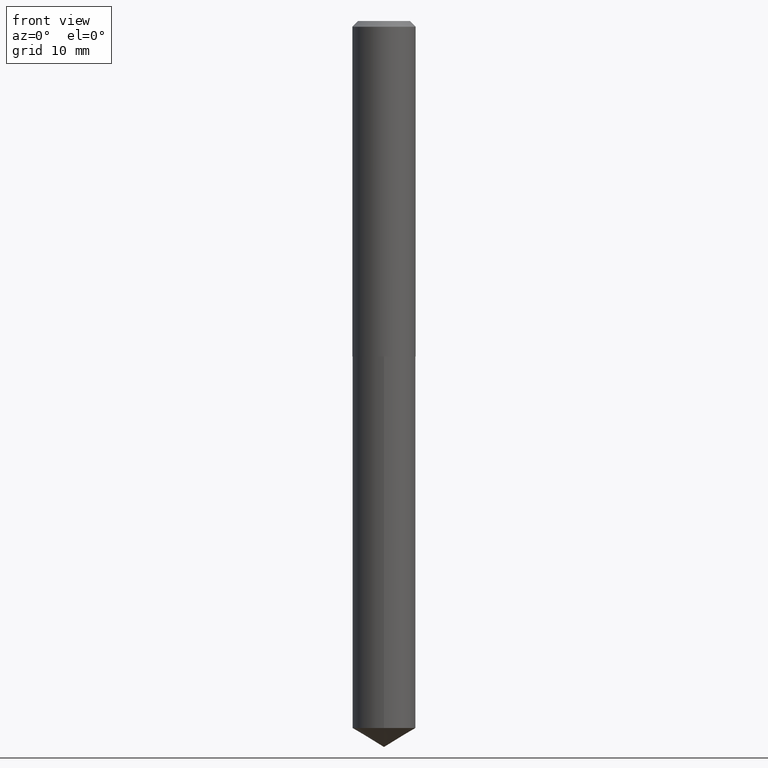
[diagram: clean part render]
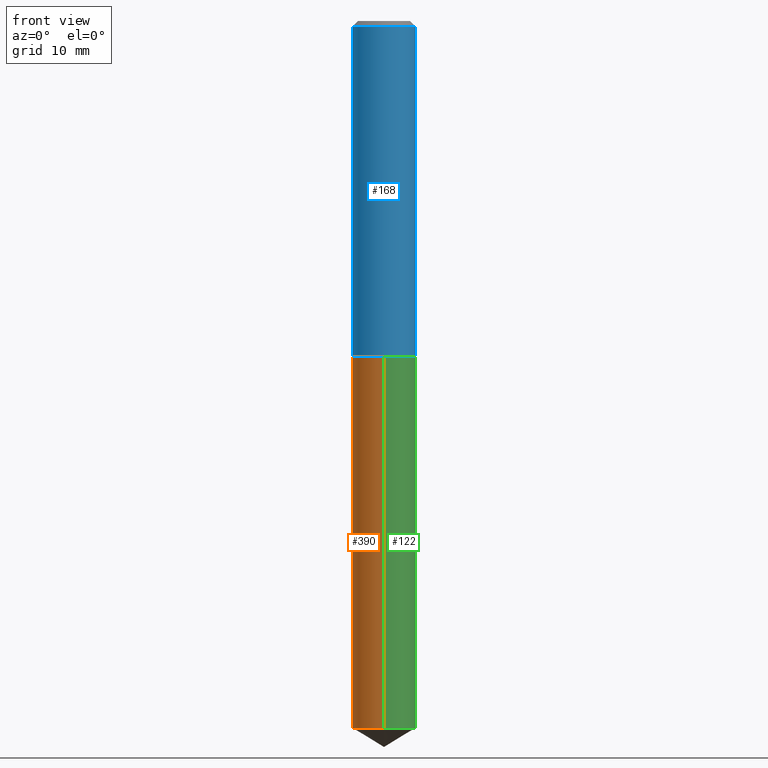
[diagram: same view with three faces highlighted in distinct colors, each labeled with its STEP entity id]
A machine part, front view with three faces highlighted in distinct colors.
Their STEP definitions:

[orange] entity #390 — the highlighted cylindrical surface (edge-blend (fillet) strip) has radius 4.4196 mm, axis along (-0, 0, 1).
#10 = DIRECTION ( 'NONE',  ( -2.445466038438734772E-29, 3.491485302413523410E-15, 1.000000000000000000 ) ) ;
#12 = EDGE_CURVE ( 'NONE', #312, #285, #227, .T. ) ;
#16 = DIRECTION ( 'NONE',  ( -2.445466038438734772E-29, 3.491485302413523410E-15, 1.000000000000000000 ) ) ;
#19 = EDGE_CURVE ( 'NONE', #312, #328, #236, .T. ) ;
#27 = DIRECTION ( 'NONE',  ( -2.445466038438734772E-29, 3.491485302413523410E-15, 1.000000000000000000 ) ) ;
#59 = CARTESIAN_POINT ( 'NONE',  ( -1.215035505917364906E-15, -0.1740000000000064273, -1.847999999999999199 ) ) ;
#78 = CARTESIAN_POINT ( 'NONE',  ( 1.236344360222669493E-15, 0.1739999999999935210, -1.848000000000000309 ) ) ;
#96 = CARTESIAN_POINT ( 'NONE',  ( 4.519226353830132171E-29, -6.452257514182132781E-15, -1.847999999999999865 ) ) ;
#99 = CARTESIAN_POINT ( 'NONE',  ( 4.519226353830132171E-29, -6.452257514182132781E-15, -1.847999999999999865 ) ) ;
#101 = CYLINDRICAL_SURFACE ( 'NONE', #340, 0.1739999999999999880 ) ;
#105 = CARTESIAN_POINT ( 'NONE',  ( 1.236344360222669296E-15, 0.1739999999999863600, -3.895450252289206272 ) ) ;
#128 = CARTESIAN_POINT ( 'NONE',  ( 1.236344360222619006E-15, 0.1739999999999935210, -1.848000000000000309 ) ) ;
#132 = EDGE_CURVE ( 'NONE', #328, #253, #320, .T. ) ;
#137 = ORIENTED_EDGE ( 'NONE', *, *, #12, .T. ) ;
#153 = DIRECTION ( 'NONE',  ( -6.982962677686265133E-15, -1.000000000000000000, 3.140055165131337128E-15 ) ) ;
#166 = DIRECTION ( 'NONE',  ( -6.982962677686265133E-15, -1.000000000000000000, 3.140055165131337128E-15 ) ) ;
#169 = CARTESIAN_POINT ( 'NONE',  ( -1.215035505917364906E-15, -0.1740000000000064273, -1.847999999999999199 ) ) ;
#198 = FACE_OUTER_BOUND ( 'NONE', #330, .T. ) ;
#220 = VECTOR ( 'NONE', #387, 39.37007874015748143 ) ;
#227 = CIRCLE ( 'NONE', #280, 0.1739999999999999880 ) ;
#236 = LINE ( 'NONE', #128, #220 ) ;
#250 = ORIENTED_EDGE ( 'NONE', *, *, #339, .T. ) ;
#253 = VERTEX_POINT ( 'NONE', #169 ) ;
#262 = DIRECTION ( 'NONE',  ( -6.982962677686265133E-15, -1.000000000000000000, 3.140055165131337128E-15 ) ) ;
#275 = CARTESIAN_POINT ( 'NONE',  ( 9.526196411196203998E-29, -1.360089997747275688E-14, -3.895450252289205384 ) ) ;
#278 = ORIENTED_EDGE ( 'NONE', *, *, #19, .F. ) ;
#280 = AXIS2_PLACEMENT_3D ( 'NONE', #275, #27, #166 ) ;
#285 = VERTEX_POINT ( 'NONE', #325 ) ;
#306 = DIRECTION ( 'NONE',  ( -2.445466038438734772E-29, 3.491485302413523410E-15, 1.000000000000000000 ) ) ;
#312 = VERTEX_POINT ( 'NONE', #105 ) ;
#320 = CIRCLE ( 'NONE', #343, 0.1739999999999999880 ) ;
#325 = CARTESIAN_POINT ( 'NONE',  ( -1.215035505917314419E-15, -0.1740000000000135605, -3.895450252289204940 ) ) ;
#328 = VERTEX_POINT ( 'NONE', #78 ) ;
#330 = EDGE_LOOP ( 'NONE', ( #278, #137, #250, #357 ) ) ;
#333 = VECTOR ( 'NONE', #16, 39.37007874015748143 ) ;
#339 = EDGE_CURVE ( 'NONE', #285, #253, #381, .T. ) ;
#340 = AXIS2_PLACEMENT_3D ( 'NONE', #99, #306, #262 ) ;
#343 = AXIS2_PLACEMENT_3D ( 'NONE', #96, #10, #153 ) ;
#357 = ORIENTED_EDGE ( 'NONE', *, *, #132, .F. ) ;
#381 = LINE ( 'NONE', #59, #333 ) ;
#387 = DIRECTION ( 'NONE',  ( -2.445466038438734772E-29, 3.491485302413523410E-15, 1.000000000000000000 ) ) ;
#390 = ADVANCED_FACE ( 'NONE', ( #198 ), #101, .T. ) ;

[blue] entity #168 — the highlighted cylindrical surface (edge-blend (fillet) strip) has radius 4.4196 mm, axis along (-0, 0, 1).
#5 = VERTEX_POINT ( 'NONE', #163 ) ;
#37 = ORIENTED_EDGE ( 'NONE', *, *, #124, .F. ) ;
#47 = DIRECTION ( 'NONE',  ( 1.000000000000000000, -6.982962677686267499E-15, 4.876176775795936914E-29 ) ) ;
#60 = ORIENTED_EDGE ( 'NONE', *, *, #363, .T. ) ;
#64 = VECTOR ( 'NONE', #121, 39.37007874015748143 ) ;
#71 = DIRECTION ( 'NONE',  ( 1.000000000000000000, -6.982962677686266711E-15, 0.000000000000000000 ) ) ;
#73 = CARTESIAN_POINT ( 'NONE',  ( 7.642090019328602662E-31, -1.091087918388490267E-16, -0.03125000000000020817 ) ) ;
#94 = AXIS2_PLACEMENT_3D ( 'NONE', #73, #225, #71 ) ;
#107 = VECTOR ( 'NONE', #379, 39.37007874015748143 ) ;
#116 = AXIS2_PLACEMENT_3D ( 'NONE', #152, #221, #47 ) ;
#120 = CARTESIAN_POINT ( 'NONE',  ( -0.1740000000000000990, 1.236344360222575027E-15, -8.558947057043541363E-30 ) ) ;
#121 = DIRECTION ( 'NONE',  ( -2.445468806185136877E-29, 3.491481338843145188E-15, 1.000000000000000000 ) ) ;
#124 = EDGE_CURVE ( 'NONE', #5, #215, #258, .T. ) ;
#134 = EDGE_LOOP ( 'NONE', ( #37, #151, #60, #383 ) ) ;
#146 = EDGE_CURVE ( 'NONE', #215, #218, #351, .T. ) ;
#151 = ORIENTED_EDGE ( 'NONE', *, *, #209, .T. ) ;
#152 = CARTESIAN_POINT ( 'NONE',  ( 0.000000000000000000, 0.000000000000000000, 0.000000000000000000 ) ) ;
#163 = CARTESIAN_POINT ( 'NONE',  ( -0.1740000000000002101, -5.214167413290135067E-15, -1.847499999999999920 ) ) ;
#168 = ADVANCED_FACE ( 'NONE', ( #185 ), #371, .T. ) ;
#171 = CARTESIAN_POINT ( 'NONE',  ( 0.1740000000000000990, -1.215035505917411252E-15, 8.484547589884934838E-30 ) ) ;
#185 = FACE_OUTER_BOUND ( 'NONE', #134, .T. ) ;
#188 = DIRECTION ( 'NONE',  ( 1.000000000000000000, -6.982962677686269077E-15, 0.000000000000000000 ) ) ;
#189 = AXIS2_PLACEMENT_3D ( 'NONE', #344, #297, #188 ) ;
#209 = EDGE_CURVE ( 'NONE', #5, #359, #373, .T. ) ;
#215 = VERTEX_POINT ( 'NONE', #342 ) ;
#218 = VERTEX_POINT ( 'NONE', #255 ) ;
#221 = DIRECTION ( 'NONE',  ( -2.445468806185136597E-29, 3.491481338843145583E-15, 1.000000000000000000 ) ) ;
#225 = DIRECTION ( 'NONE',  ( -2.445468806185136597E-29, 3.491481338843145583E-15, 1.000000000000000000 ) ) ;
#235 = LINE ( 'NONE', #171, #107 ) ;
#255 = CARTESIAN_POINT ( 'NONE',  ( 0.1739999999999999880, -1.324144297756259366E-15, -0.03125000000000020817 ) ) ;
#258 = LINE ( 'NONE', #120, #64 ) ;
#274 = CARTESIAN_POINT ( 'NONE',  ( 0.1740000000000002101, -7.665547279430124304E-15, -1.847499999999999920 ) ) ;
#297 = DIRECTION ( 'NONE',  ( -2.445468806185136597E-29, 3.491481338843145583E-15, 1.000000000000000000 ) ) ;
#342 = CARTESIAN_POINT ( 'NONE',  ( -0.1739999999999999880, -2.043465922453203979E-15, -0.03125000000000020817 ) ) ;
#344 = CARTESIAN_POINT ( 'NONE',  ( 4.518003619427039369E-29, -6.450511773512711278E-15, -1.847499999999999920 ) ) ;
#351 = CIRCLE ( 'NONE', #94, 0.1739999999999999880 ) ;
#359 = VERTEX_POINT ( 'NONE', #274 ) ;
#363 = EDGE_CURVE ( 'NONE', #359, #218, #235, .T. ) ;
#371 = CYLINDRICAL_SURFACE ( 'NONE', #116, 0.1740000000000000990 ) ;
#373 = CIRCLE ( 'NONE', #189, 0.1740000000000002101 ) ;
#379 = DIRECTION ( 'NONE',  ( -2.445468806185136877E-29, 3.491481338843145188E-15, 1.000000000000000000 ) ) ;
#383 = ORIENTED_EDGE ( 'NONE', *, *, #146, .F. ) ;

[green] entity #122 — the highlighted cylindrical surface (edge-blend (fillet) strip) has radius 4.4196 mm, axis along (-0, 0, 1).
#11 = DIRECTION ( 'NONE',  ( -2.445466038438734772E-29, 3.491485302413523410E-15, 1.000000000000000000 ) ) ;
#16 = DIRECTION ( 'NONE',  ( -2.445466038438734772E-29, 3.491485302413523410E-15, 1.000000000000000000 ) ) ;
#19 = EDGE_CURVE ( 'NONE', #312, #328, #236, .T. ) ;
#25 = EDGE_LOOP ( 'NONE', ( #87, #276, #117, #243 ) ) ;
#32 = AXIS2_PLACEMENT_3D ( 'NONE', #223, #38, #316 ) ;
#38 = DIRECTION ( 'NONE',  ( -2.445466038438734772E-29, 3.491485302413523410E-15, 1.000000000000000000 ) ) ;
#59 = CARTESIAN_POINT ( 'NONE',  ( -1.215035505917364906E-15, -0.1740000000000064273, -1.847999999999999199 ) ) ;
#69 = FACE_OUTER_BOUND ( 'NONE', #25, .T. ) ;
#78 = CARTESIAN_POINT ( 'NONE',  ( 1.236344360222669493E-15, 0.1739999999999935210, -1.848000000000000309 ) ) ;
#87 = ORIENTED_EDGE ( 'NONE', *, *, #349, .T. ) ;
#105 = CARTESIAN_POINT ( 'NONE',  ( 1.236344360222669296E-15, 0.1739999999999863600, -3.895450252289206272 ) ) ;
#112 = EDGE_CURVE ( 'NONE', #253, #328, #126, .T. ) ;
#117 = ORIENTED_EDGE ( 'NONE', *, *, #112, .F. ) ;
#122 = ADVANCED_FACE ( 'NONE', ( #69 ), #251, .T. ) ;
#126 = CIRCLE ( 'NONE', #257, 0.1739999999999999880 ) ;
#128 = CARTESIAN_POINT ( 'NONE',  ( 1.236344360222619006E-15, 0.1739999999999935210, -1.848000000000000309 ) ) ;
#129 = CARTESIAN_POINT ( 'NONE',  ( 9.526196411196203998E-29, -1.360089997747275688E-14, -3.895450252289205384 ) ) ;
#169 = CARTESIAN_POINT ( 'NONE',  ( -1.215035505917364906E-15, -0.1740000000000064273, -1.847999999999999199 ) ) ;
#192 = CARTESIAN_POINT ( 'NONE',  ( 4.519226353830132171E-29, -6.452257514182132781E-15, -1.847999999999999865 ) ) ;
#204 = DIRECTION ( 'NONE',  ( -6.982962677686265133E-15, -1.000000000000000000, 3.140055165131337128E-15 ) ) ;
#220 = VECTOR ( 'NONE', #387, 39.37007874015748143 ) ;
#223 = CARTESIAN_POINT ( 'NONE',  ( 4.519226353830132171E-29, -6.452257514182132781E-15, -1.847999999999999865 ) ) ;
#226 = DIRECTION ( 'NONE',  ( -6.982962677686265133E-15, -1.000000000000000000, 3.140055165131337128E-15 ) ) ;
#236 = LINE ( 'NONE', #128, #220 ) ;
#243 = ORIENTED_EDGE ( 'NONE', *, *, #339, .F. ) ;
#245 = CIRCLE ( 'NONE', #267, 0.1739999999999999880 ) ;
#251 = CYLINDRICAL_SURFACE ( 'NONE', #32, 0.1739999999999999880 ) ;
#253 = VERTEX_POINT ( 'NONE', #169 ) ;
#257 = AXIS2_PLACEMENT_3D ( 'NONE', #192, #11, #226 ) ;
#267 = AXIS2_PLACEMENT_3D ( 'NONE', #129, #269, #204 ) ;
#269 = DIRECTION ( 'NONE',  ( -2.445466038438734772E-29, 3.491485302413523410E-15, 1.000000000000000000 ) ) ;
#276 = ORIENTED_EDGE ( 'NONE', *, *, #19, .T. ) ;
#285 = VERTEX_POINT ( 'NONE', #325 ) ;
#312 = VERTEX_POINT ( 'NONE', #105 ) ;
#316 = DIRECTION ( 'NONE',  ( -6.982962677686265133E-15, -1.000000000000000000, 3.140055165131337128E-15 ) ) ;
#325 = CARTESIAN_POINT ( 'NONE',  ( -1.215035505917314419E-15, -0.1740000000000135605, -3.895450252289204940 ) ) ;
#328 = VERTEX_POINT ( 'NONE', #78 ) ;
#333 = VECTOR ( 'NONE', #16, 39.37007874015748143 ) ;
#339 = EDGE_CURVE ( 'NONE', #285, #253, #381, .T. ) ;
#349 = EDGE_CURVE ( 'NONE', #285, #312, #245, .T. ) ;
#381 = LINE ( 'NONE', #59, #333 ) ;
#387 = DIRECTION ( 'NONE',  ( -2.445466038438734772E-29, 3.491485302413523410E-15, 1.000000000000000000 ) ) ;